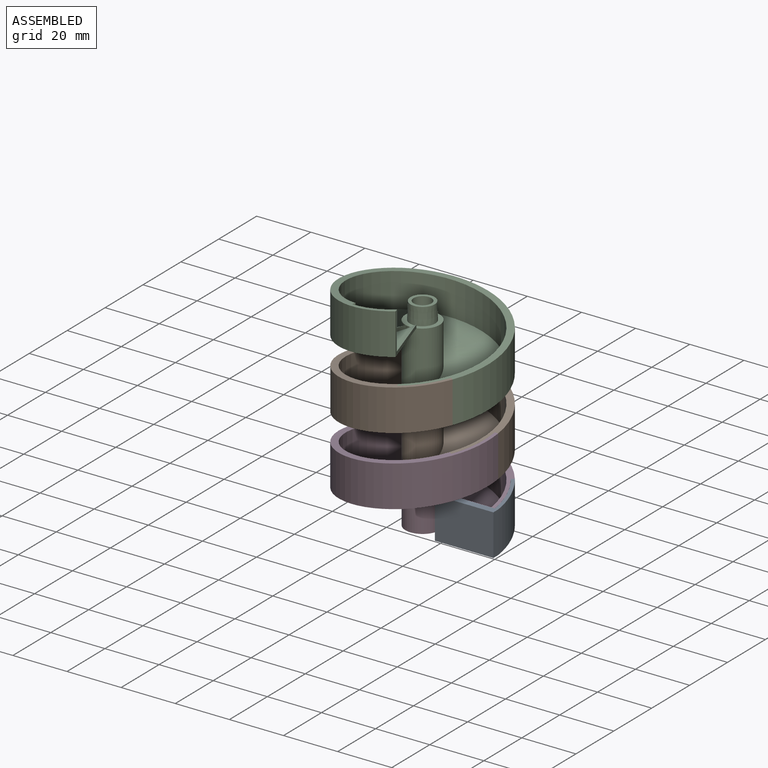
[diagram: assembled view]
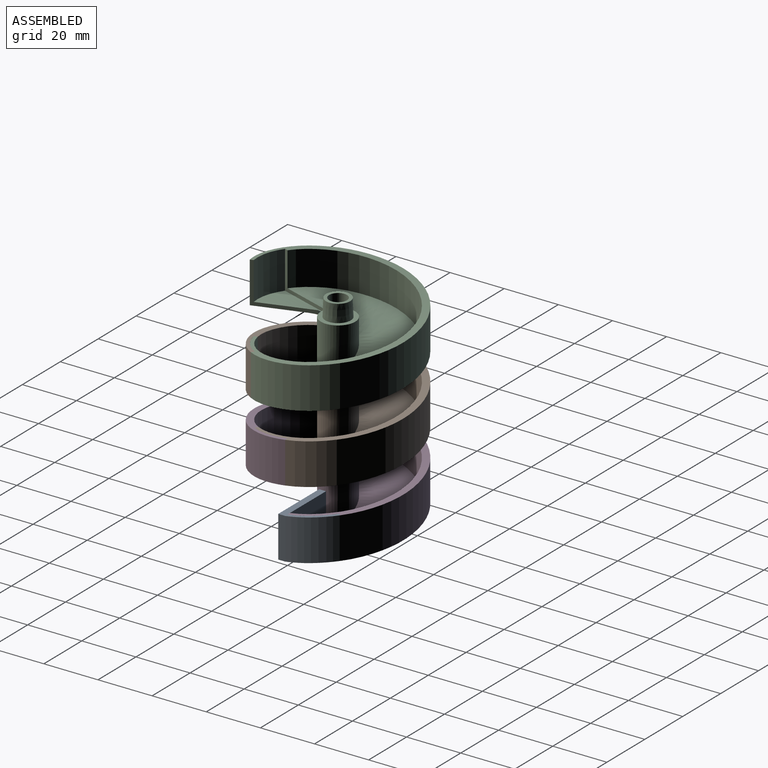
[diagram: assembled view, second angle]
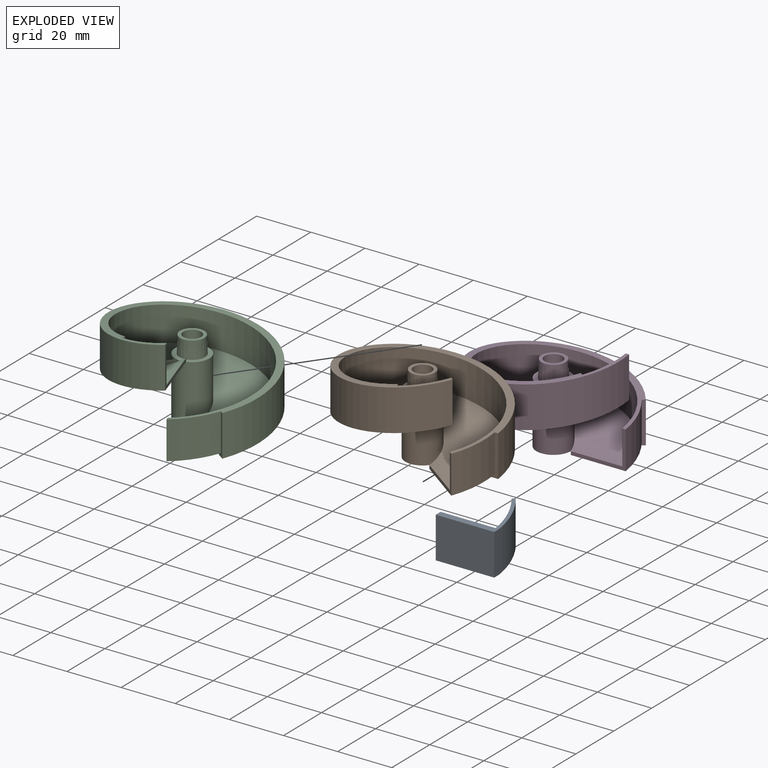
[diagram: exploded view]
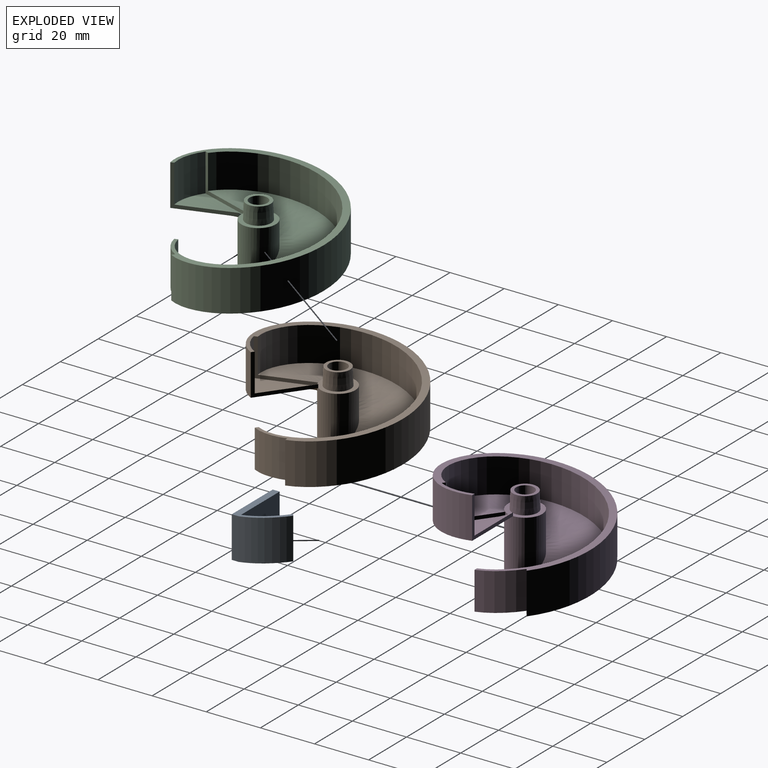
[diagram: exploded view, second angle]
ASSEMBLY  parts=4 mates=3
PART A: 13 faces, bbox 22.8x19x17.8 mm
  f0: plane 17.47x15.24mm, normal (-0.59,0.81,0), area 45.2mm2, adj f1,f2,f3,f4,f5,f6
  f1: bspline ~16.42x6.36mm, area 22mm2, adj f0,f2,f6,f8
  f2: cylinder r=27.94mm len=17.78mm, axis (0,0,1), area 267.5mm2, adj f0,f1,f3,f7
  f3: bspline ~22.8x16.42mm, area 240mm2, adj f0,f2,f4,f10
  f4: cylinder r=6.35mm len=3.81mm, axis (0,0,1), area 5.1mm2, adj f0,f3,f5,f9
  f5: bspline ~21.53x15.68mm, area 217.9mm2, adj f0,f4,f6,f12
  f6: cylinder r=26.67mm len=16.51mm, axis (0,0,1), area 234.1mm2, adj f0,f1,f5,f12
  f7: plane 15.24x2.54mm, normal (1,0,0), area 38.7mm2, adj f2,f8,f10,f11
  f8: plane 21.59x2.54mm, normal (0,0,1), area 54.8mm2, adj f1,f7,f9,f11,f12
  f9: plane 15.24x2.54mm, normal (-1,0,0), area 38.7mm2, adj f4,f8,f10,f11,f12
  f10: plane 21.59x2.54mm, normal (0,0,-1), area 54.8mm2, adj f3,f7,f9,f11
  f11: plane 21.59x15.24mm, normal (0,-1,0), area 329mm2, adj f7,f8,f9,f10
  f12: plane 20.32x13.97mm, normal (0,1,0), area 283.9mm2, adj f5,f6,f8,f9
PART B: 25 faces, bbox 55.9x58.8x40.6 mm
  f0: cylinder r=3.3mm len=21.59mm, axis (0,0,-1), area 447.9mm2, adj f22,f24
  f1: cylinder r=6.35mm len=1.96mm, axis (0,0,1), area 1.3mm2, adj f5,f11,f20
  f2: bspline ~58.76x55.88mm, area 387.4mm2, adj f3,f5,f6,f8,f10,f12,f13,f15
  f3: cylinder r=25.4mm len=50.8mm, axis (0,0,1), area 1824.1mm2, adj f2,f4,f5,f13
  f4: bspline ~53.41x50.8mm, area 1772.1mm2, adj f3,f5,f13,f17
  f5: plane 20.32x13.97mm, normal (0,-1,0), area 41.9mm2, adj f1,f2,f3,f4,f11,f12
  f6: cylinder r=27.94mm len=55.88mm, axis (0,0,1), area 2407.9mm2, adj f2,f7,f8,f10
  f7: bspline ~58.76x55.88mm, area 2159.5mm2, adj f6,f8,f10,f17
  f8: plane 21.59x15.24mm, normal (0,1,0), area 45.2mm2, adj f2,f6,f7,f9,f14,f15
  f9: cylinder r=6.35mm len=1.96mm, axis (0,0,1), area 1.3mm2, adj f8,f14,f19
  f10: plane 17.47x15.24mm, normal (0.59,-0.81,0), area 45.2mm2, adj f2,f6,f7,f11,f12,f16
  f11: bspline ~25.36x24.71mm, area 217.9mm2, adj f1,f5,f10,f12,f16
  f12: cylinder r=26.67mm len=16.51mm, axis (0,0,1), area 234.1mm2, adj f2,f5,f10,f11
  f13: plane 16.44x13.97mm, normal (0.59,0.81,0), area 41.9mm2, adj f2,f3,f4,f14,f15,f18
  f14: bspline ~25.36x24.71mm, area 217.9mm2, adj f8,f9,f13,f15,f18
  f15: cylinder r=26.67mm len=16.51mm, axis (0,0,-1), area 234.1mm2, adj f2,f8,f13,f14
  f16: cylinder r=6.35mm len=1.77mm, axis (0,0,-1), area 1.3mm2, adj f10,f11,f20
  f17: cylinder r=6.35mm len=22.86mm, axis (0,0,-1), area 820.9mm2, adj f4,f7,f19,f20
  f18: cylinder r=6.35mm len=1.77mm, axis (0,0,-1), area 1.3mm2, adj f13,f14,f19
  f19: plane 12.7x12.7mm, normal (0,0,1), area 57.3mm2, adj f9,f17,f18,f21
  f20: plane 12.7x12.7mm, normal (0,0,-1), area 53.5mm2, adj f1,f16,f17,f23
  f21: cone r=4.7mm half-angle=2deg, axis (0,0,-1), area 183.2mm2, adj f19,f22
  f22: plane 8.95x8.95mm, normal (0,0,1), area 28.7mm2, adj f0,f21
  f23: cylinder r=4.83mm len=9.65mm, axis (0,0,-1), area 231.1mm2, adj f20,f24
  f24: plane 9.65x9.65mm, normal (0,0,-1), area 38.9mm2, adj f0,f23
PART C: same geometry as B
PART D: same geometry as B
PLACE A t=(-26.67,0,-1.27)mm
PLACE B rot(axis=(0,0,-1),36deg) t=(-26.67,0,21.59)mm
PLACE C rot(axis=(0,0,-1),72deg) t=(-26.67,0,44.45)mm
PLACE D t=(-26.67,0,-1.27)mm
MATE fastened B.f8 <-> C.f10  axis (0.59,0.81,0) through (-4.07,-16.42,46.99)mm
MATE fastened D.f10 <-> A.f0  axis (0.59,-0.81,0) through (-4.07,16.42,1.27)mm
MATE fastened D.f8 <-> B.f10  axis (0,1,0) through (1.27,0,24.13)mm
